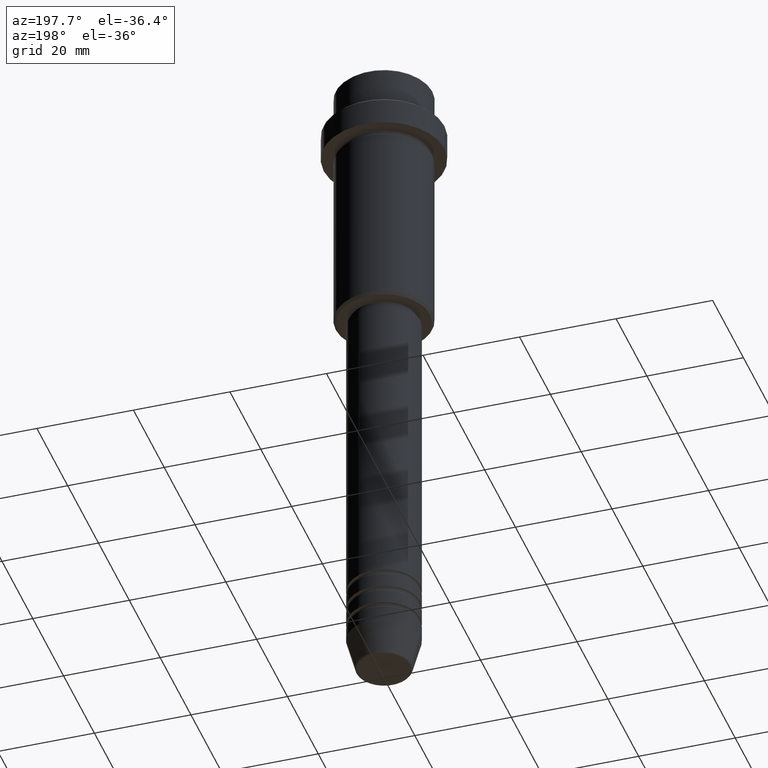
[diagram: clean part render]
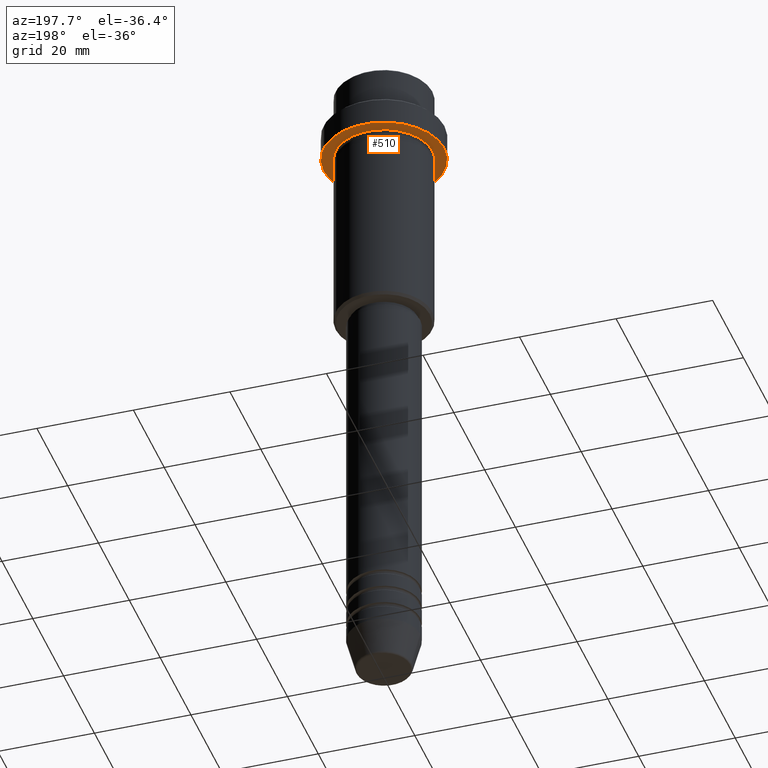
[diagram: same view with one face highlighted and labeled with its STEP entity id]
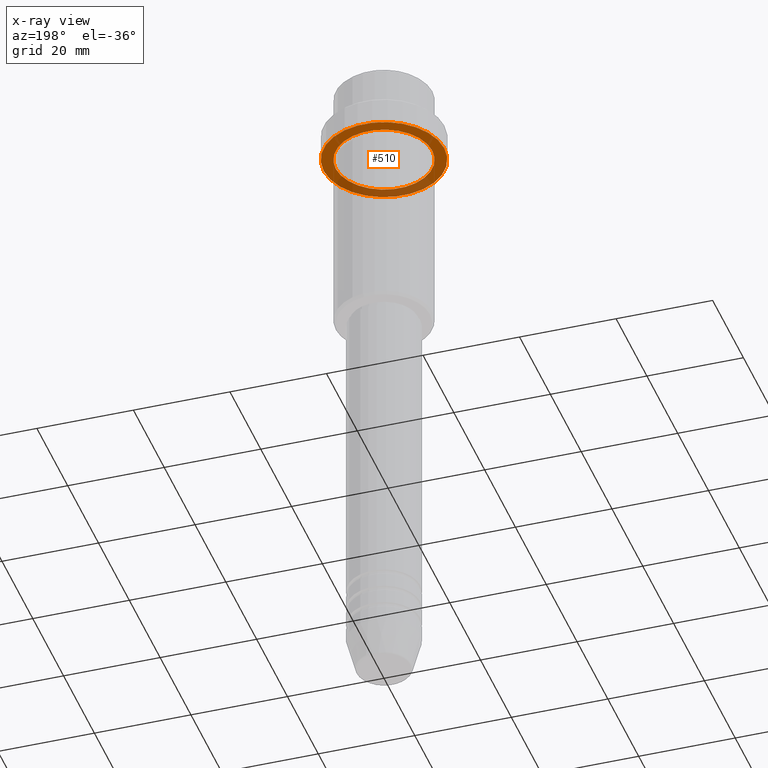
[diagram: x-ray of the same camera — body ghosted, the highlighted face saturated]
A machine part, auxiliary view. The second image highlights one B-rep face of the part: STEP entity #510.
The next image is the same camera in x-ray: the body ghosted, the highlighted face saturated — about 29% of this face is hidden behind the body in this view.
In plain terms, the highlighted planar face has unit normal (0, 0, -1).
Its self-contained STEP definition (entity closure, byte-faithful):
#6 = CARTESIAN_POINT ( 'NONE',  ( 0.000000000000000000, 12.50000000000000000, -15.00000000000000000 ) ) ;
#7 = CARTESIAN_POINT ( 'NONE',  ( -9.999999999999992895, 0.000000000000000000, -15.00000000000000000 ) ) ;
#28 = DIRECTION ( 'NONE',  ( 1.000000000000000000, 0.000000000000000000, 0.000000000000000000 ) ) ;
#66 = EDGE_CURVE ( 'NONE', #644, #718, #107, .T. ) ;
#107 = CIRCLE ( 'NONE', #1001, 12.50000000000000000 ) ;
#169 = DIRECTION ( 'NONE',  ( 1.000000000000000000, 0.000000000000000000, 0.000000000000000000 ) ) ;
#184 = EDGE_CURVE ( 'NONE', #718, #644, #1041, .T. ) ;
#202 = ORIENTED_EDGE ( 'NONE', *, *, #287, .T. ) ;
#213 = ORIENTED_EDGE ( 'NONE', *, *, #66, .F. ) ;
#222 = PLANE ( 'NONE',  #1242 ) ;
#269 = DIRECTION ( 'NONE',  ( -1.000000000000000000, 0.000000000000000000, 0.000000000000000000 ) ) ;
#287 = EDGE_CURVE ( 'NONE', #863, #1238, #705, .T. ) ;
#315 = EDGE_LOOP ( 'NONE', ( #984, #213 ) ) ;
#327 = CARTESIAN_POINT ( 'NONE',  ( 0.000000000000000000, 0.000000000000000000, -15.00000000000000000 ) ) ;
#333 = FACE_BOUND ( 'NONE', #441, .T. ) ;
#417 = DIRECTION ( 'NONE',  ( -1.000000000000000000, 0.000000000000000000, 0.000000000000000000 ) ) ;
#441 = EDGE_LOOP ( 'NONE', ( #202, #675 ) ) ;
#510 = ADVANCED_FACE ( 'NONE', ( #333, #669 ), #222, .T. ) ;
#644 = VERTEX_POINT ( 'NONE', #1132 ) ;
#669 = FACE_OUTER_BOUND ( 'NONE', #315, .T. ) ;
#675 = ORIENTED_EDGE ( 'NONE', *, *, #795, .T. ) ;
#705 = CIRCLE ( 'NONE', #1171, 9.999999999999992895 ) ;
#717 = CARTESIAN_POINT ( 'NONE',  ( 9.999999999999992895, 1.224646799147352468E-15, -15.00000000000000000 ) ) ;
#718 = VERTEX_POINT ( 'NONE', #721 ) ;
#721 = CARTESIAN_POINT ( 'NONE',  ( 12.50000000000000000, 0.000000000000000000, -15.00000000000000000 ) ) ;
#795 = EDGE_CURVE ( 'NONE', #1238, #863, #864, .T. ) ;
#822 = CARTESIAN_POINT ( 'NONE',  ( 0.000000000000000000, 0.000000000000000000, -15.00000000000000000 ) ) ;
#863 = VERTEX_POINT ( 'NONE', #7 ) ;
#864 = CIRCLE ( 'NONE', #1379, 9.999999999999992895 ) ;
#881 = DIRECTION ( 'NONE',  ( -0.000000000000000000, -0.000000000000000000, 1.000000000000000000 ) ) ;
#926 = AXIS2_PLACEMENT_3D ( 'NONE', #937, #1135, #169 ) ;
#937 = CARTESIAN_POINT ( 'NONE',  ( 0.000000000000000000, 0.000000000000000000, -15.00000000000000000 ) ) ;
#945 = CARTESIAN_POINT ( 'NONE',  ( 0.000000000000000000, 0.000000000000000000, -15.00000000000000000 ) ) ;
#984 = ORIENTED_EDGE ( 'NONE', *, *, #184, .F. ) ;
#994 = DIRECTION ( 'NONE',  ( -1.000000000000000000, 0.000000000000000000, -0.000000000000000000 ) ) ;
#1001 = AXIS2_PLACEMENT_3D ( 'NONE', #327, #881, #28 ) ;
#1041 = CIRCLE ( 'NONE', #926, 12.50000000000000000 ) ;
#1100 = DIRECTION ( 'NONE',  ( 0.000000000000000000, 0.000000000000000000, -1.000000000000000000 ) ) ;
#1132 = CARTESIAN_POINT ( 'NONE',  ( -12.50000000000000000, 1.530808498934191521E-15, -15.00000000000000000 ) ) ;
#1135 = DIRECTION ( 'NONE',  ( -0.000000000000000000, -0.000000000000000000, 1.000000000000000000 ) ) ;
#1171 = AXIS2_PLACEMENT_3D ( 'NONE', #822, #1255, #269 ) ;
#1238 = VERTEX_POINT ( 'NONE', #717 ) ;
#1242 = AXIS2_PLACEMENT_3D ( 'NONE', #6, #1100, #994 ) ;
#1255 = DIRECTION ( 'NONE',  ( -0.000000000000000000, -0.000000000000000000, 1.000000000000000000 ) ) ;
#1375 = DIRECTION ( 'NONE',  ( -0.000000000000000000, -0.000000000000000000, 1.000000000000000000 ) ) ;
#1379 = AXIS2_PLACEMENT_3D ( 'NONE', #945, #1375, #417 ) ;